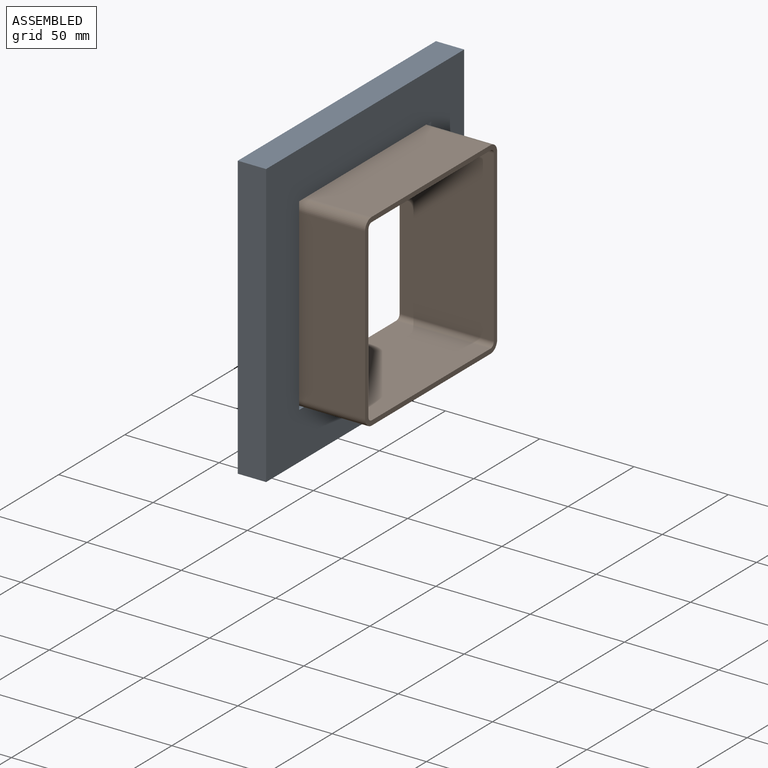
[diagram: assembled view]
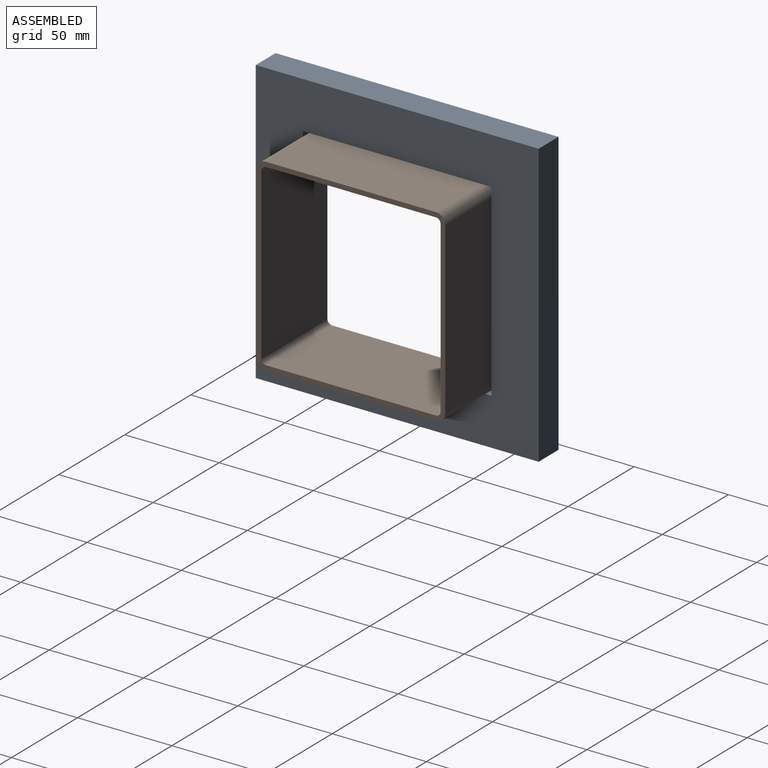
[diagram: assembled view, second angle]
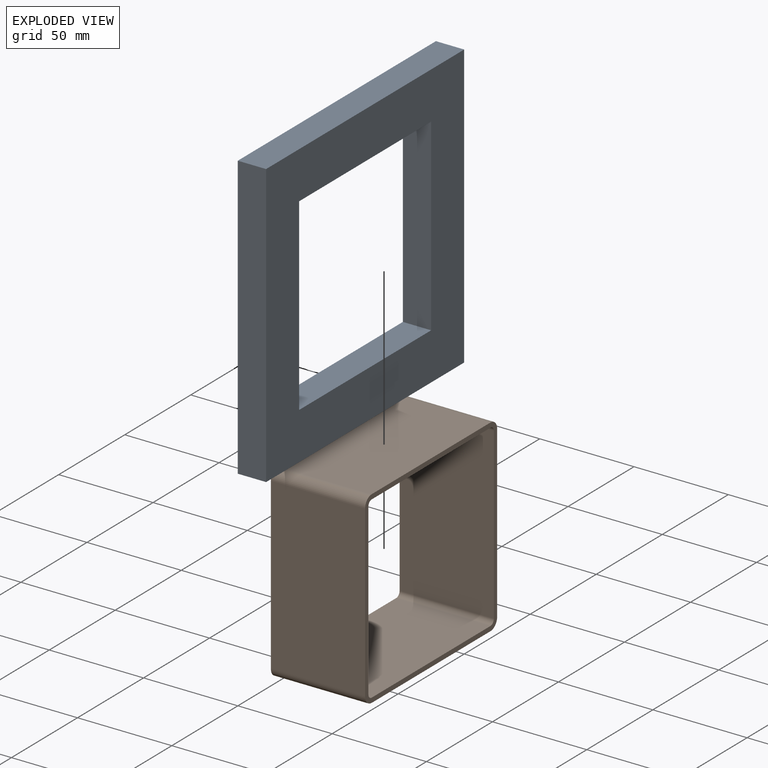
[diagram: exploded view]
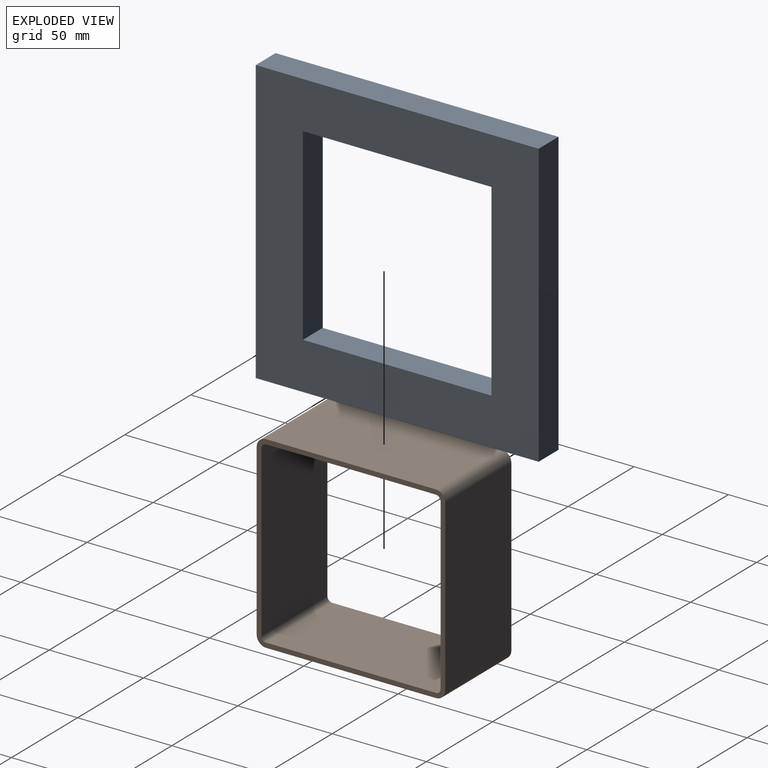
[diagram: exploded view, second angle]
ASSEMBLY  parts=2 mates=3
PART A: 10 faces, bbox 15x150x150 mm
  f0: plane 100x15mm, normal (0,1,0), area 1500mm2, adj f1,f7,f8,f9
  f1: plane 100x15mm, normal (0,0,-1), area 1500mm2, adj f0,f2,f8,f9
  f2: plane 100x15mm, normal (0,-1,0), area 1500mm2, adj f1,f7,f8,f9
  f3: plane 150x15mm, normal (0,-1,0), area 2250mm2, adj f4,f6,f8,f9
  f4: plane 150x15mm, normal (0,0,-1), area 2250mm2, adj f3,f5,f8,f9
  f5: plane 150x15mm, normal (0,1,0), area 2250mm2, adj f4,f6,f8,f9
  f6: plane 150x15mm, normal (0,0,1), area 2250mm2, adj f3,f5,f8,f9
  f7: plane 100x15mm, normal (0,0,1), area 1500mm2, adj f0,f2,f8,f9
  f8: plane 150x150mm, normal (1,0,0), area 12500mm2, adj f0,f1,f2,f3,f4,f5,f6,f7
  f9: plane 150x150mm, normal (-1,0,0), area 12500mm2, adj f0,f1,f2,f3,f4,f5,f6,f7
PART B: 18 faces, bbox 100x50x100 mm
  f0: plane 100x100mm, normal (0,-1,0), area 958.9mm2, adj f2,f3,f4,f5,f6,f7,f8,f9
  f1: plane 100x100mm, normal (0,1,0), area 958.9mm2, adj f2,f3,f4,f5,f6,f7,f8,f9
  f2: plane 90x50mm, normal (1,0,0), area 4500mm2, adj f0,f1,f14,f17
  f3: plane 90x50mm, normal (0,0,1), area 4500mm2, adj f0,f1,f14,f15
  f4: plane 90x50mm, normal (-1,0,0), area 4500mm2, adj f0,f1,f15,f16
  f5: plane 90x50mm, normal (0,0,-1), area 4500mm2, adj f0,f1,f16,f17
  f6: plane 90x50mm, normal (-1,0,0), area 4500mm2, adj f0,f1,f11,f13
  f7: plane 90x50mm, normal (0,0,-1), area 4500mm2, adj f0,f1,f12,f13
  f8: plane 90x50mm, normal (1,0,0), area 4500mm2, adj f0,f1,f10,f12
  f9: plane 90x50mm, normal (0,0,1), area 4500mm2, adj f0,f1,f10,f11
  f10: cylinder r=2.5mm len=50mm, axis (0,1,0), area 196.3mm2, adj f0,f1,f8,f9
  f11: cylinder r=2.5mm len=50mm, axis (0,-1,0), area 196.3mm2, adj f0,f1,f6,f9
  f12: cylinder r=2.5mm len=50mm, axis (0,-1,0), area 196.3mm2, adj f0,f1,f7,f8
  f13: cylinder r=2.5mm len=50mm, axis (0,1,0), area 196.3mm2, adj f0,f1,f6,f7
  f14: cylinder r=5mm len=50mm, axis (0,-1,0), area 392.7mm2, adj f0,f1,f2,f3
  f15: cylinder r=5mm len=50mm, axis (0,1,0), area 392.7mm2, adj f0,f1,f3,f4
  f16: cylinder r=5mm len=50mm, axis (0,-1,0), area 392.7mm2, adj f0,f1,f4,f5
  f17: cylinder r=5mm len=50mm, axis (0,1,0), area 392.7mm2, adj f0,f1,f2,f5
PLACE A at identity fixed
PLACE B rot(axis=(0,0,-1),90deg) t=(25,125,125)mm
MATE planar A.f1 <-> B.f3  axis (0,0,-1) through (7.5,75,125)mm
MATE planar B.f4 <-> A.f2  axis (0,1,0) through (25,125,75)mm
MATE planar A.f9 <-> B.f0  axis (-1,0,0) through (0,75,75)mm
